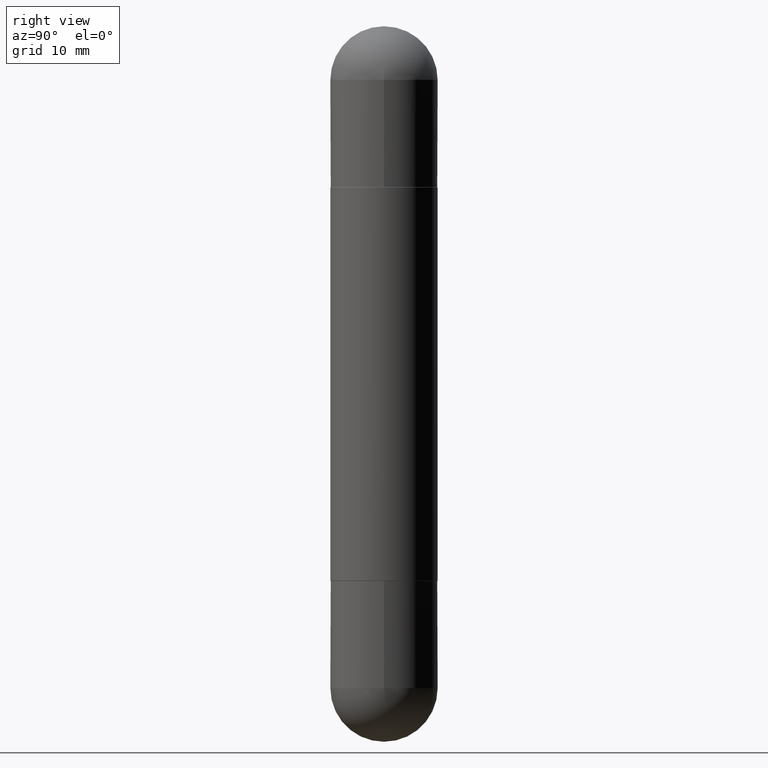
[diagram: clean part render]
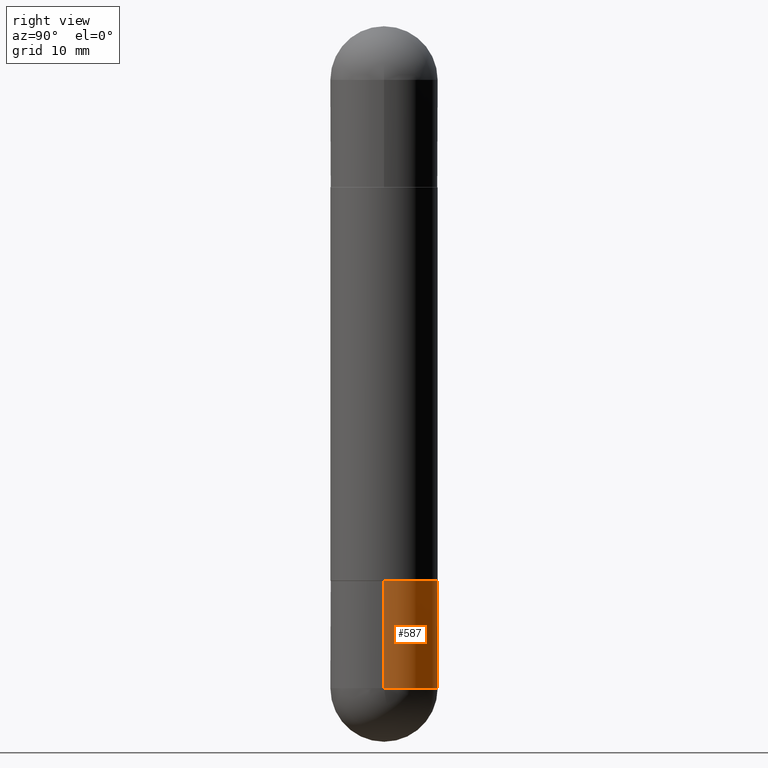
[diagram: same view with one face highlighted and labeled with its STEP entity id]
A machine part, right view. The second image highlights one B-rep face of the part: STEP entity #587.
In plain terms, the highlighted cylindrical surface (partial cylindrical patch) has radius 4.7625 mm, axis along (-0, 0, 1).
Its self-contained STEP definition (entity closure, byte-faithful):
#3 = EDGE_CURVE ( 'NONE', #8, #341, #540, .T. ) ;
#8 = VERTEX_POINT ( 'NONE', #595 ) ;
#25 = CARTESIAN_POINT ( 'NONE',  ( 4.739318546386794397E-29, -6.766490834678016045E-15, -1.937999999999999945 ) ) ;
#35 = FACE_OUTER_BOUND ( 'NONE', #325, .T. ) ;
#39 = DIRECTION ( 'NONE',  ( 1.000000000000000000, -6.982962677686265922E-15, 4.876176775795935793E-29 ) ) ;
#44 = DIRECTION ( 'NONE',  ( -2.445468806185136877E-29, 3.491481338843145188E-15, 1.000000000000000000 ) ) ;
#74 = DIRECTION ( 'NONE',  ( -2.445468806185136597E-29, 3.491481338843145583E-15, 1.000000000000000000 ) ) ;
#113 = LINE ( 'NONE', #238, #563 ) ;
#143 = VERTEX_POINT ( 'NONE', #606 ) ;
#148 = DIRECTION ( 'NONE',  ( 1.000000000000000000, -6.982962677686266711E-15, 0.000000000000000000 ) ) ;
#186 = EDGE_CURVE ( 'NONE', #143, #631, #113, .T. ) ;
#189 = CIRCLE ( 'NONE', #434, 0.1875000000000000555 ) ;
#191 = AXIS2_PLACEMENT_3D ( 'NONE', #351, #608, #39 ) ;
#202 = ORIENTED_EDGE ( 'NONE', *, *, #276, .T. ) ;
#210 = CARTESIAN_POINT ( 'NONE',  ( 5.655146614303128380E-29, -8.074050596074775072E-15, -2.312500000000000000 ) ) ;
#231 = CYLINDRICAL_SURFACE ( 'NONE', #191, 0.1875000000000000555 ) ;
#235 = CARTESIAN_POINT ( 'NONE',  ( 1.309305502066231017E-15, 0.1874999999999918954, -2.312500000000000444 ) ) ;
#238 = CARTESIAN_POINT ( 'NONE',  ( -0.1875000000000000555, 1.332267629550188243E-15, -9.223003294227950793E-30 ) ) ;
#249 = ORIENTED_EDGE ( 'NONE', *, *, #706, .F. ) ;
#276 = EDGE_CURVE ( 'NONE', #341, #143, #189, .T. ) ;
#312 = AXIS2_PLACEMENT_3D ( 'NONE', #210, #74, #582 ) ;
#325 = EDGE_LOOP ( 'NONE', ( #202, #673, #249, #371, #722 ) ) ;
#341 = VERTEX_POINT ( 'NONE', #235 ) ;
#344 = DIRECTION ( 'NONE',  ( -2.445468806185136597E-29, 3.491481338843145583E-15, 1.000000000000000000 ) ) ;
#351 = CARTESIAN_POINT ( 'NONE',  ( 0.000000000000000000, 0.000000000000000000, 0.000000000000000000 ) ) ;
#361 = DIRECTION ( 'NONE',  ( 1.000000000000000000, -6.982962677686270655E-15, 0.000000000000000000 ) ) ;
#371 = ORIENTED_EDGE ( 'NONE', *, *, #769, .F. ) ;
#402 = CARTESIAN_POINT ( 'NONE',  ( 0.1875000000000000555, -1.309305502066175205E-15, 9.142831454617382414E-30 ) ) ;
#418 = CARTESIAN_POINT ( 'NONE',  ( 5.655146614303128380E-29, -8.074050596074775072E-15, -2.312500000000000000 ) ) ;
#427 = VECTOR ( 'NONE', #711, 39.37007874015748143 ) ;
#434 = AXIS2_PLACEMENT_3D ( 'NONE', #418, #728, #361 ) ;
#455 = CARTESIAN_POINT ( 'NONE',  ( -0.1875000000000000278, -6.088003085826206921E-15, -1.937999999999999945 ) ) ;
#478 = CIRCLE ( 'NONE', #492, 0.1875000000000000278 ) ;
#492 = AXIS2_PLACEMENT_3D ( 'NONE', #25, #344, #148 ) ;
#521 = CARTESIAN_POINT ( 'NONE',  ( 0.1875000000000000278, -8.075796336744191053E-15, -1.937999999999999945 ) ) ;
#540 = CIRCLE ( 'NONE', #312, 0.1875000000000000555 ) ;
#563 = VECTOR ( 'NONE', #44, 39.37007874015748143 ) ;
#575 = LINE ( 'NONE', #402, #427 ) ;
#582 = DIRECTION ( 'NONE',  ( 1.000000000000000000, -6.982962677686270655E-15, 0.000000000000000000 ) ) ;
#587 = ADVANCED_FACE ( 'NONE', ( #35 ), #231, .T. ) ;
#595 = CARTESIAN_POINT ( 'NONE',  ( 0.1875000000000000555, -8.729576217442571356E-15, -2.312500000000000000 ) ) ;
#606 = CARTESIAN_POINT ( 'NONE',  ( -0.1875000000000000555, -6.088003085826207710E-15, -2.312500000000000000 ) ) ;
#608 = DIRECTION ( 'NONE',  ( -2.445468806185136597E-29, 3.491481338843145583E-15, 1.000000000000000000 ) ) ;
#631 = VERTEX_POINT ( 'NONE', #455 ) ;
#673 = ORIENTED_EDGE ( 'NONE', *, *, #186, .T. ) ;
#700 = VERTEX_POINT ( 'NONE', #521 ) ;
#706 = EDGE_CURVE ( 'NONE', #700, #631, #478, .T. ) ;
#711 = DIRECTION ( 'NONE',  ( -2.445468806185136877E-29, 3.491481338843145188E-15, 1.000000000000000000 ) ) ;
#722 = ORIENTED_EDGE ( 'NONE', *, *, #3, .T. ) ;
#728 = DIRECTION ( 'NONE',  ( -2.445468806185136597E-29, 3.491481338843145583E-15, 1.000000000000000000 ) ) ;
#769 = EDGE_CURVE ( 'NONE', #8, #700, #575, .T. ) ;